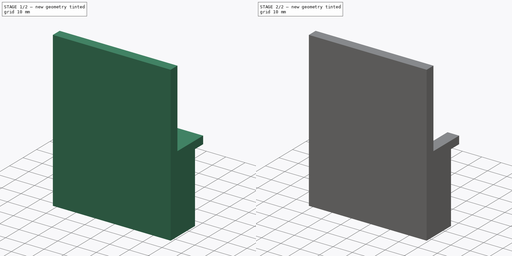
[diagram: build sequence overview — one tinted view per stage of 2, left to right]
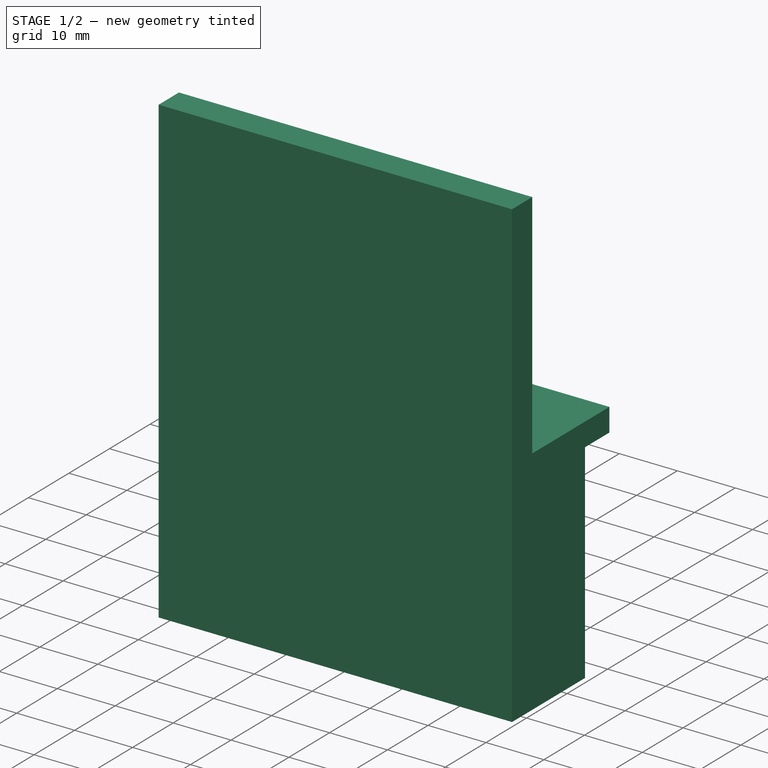
[diagram: stage 1 of 2 — iso view after this stage's code; geometry added in this stage tinted green]
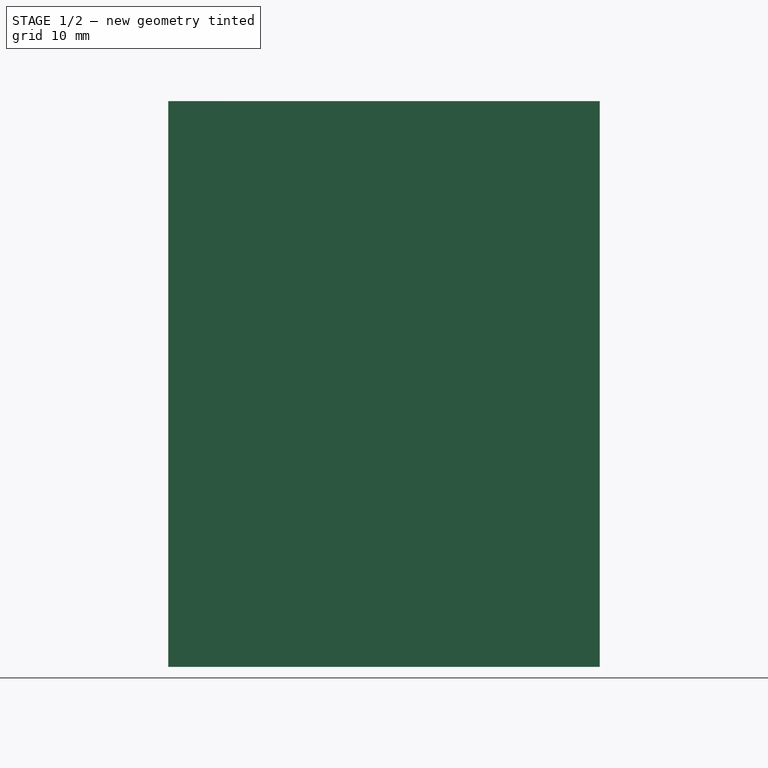
[diagram: stage 1 of 2 — front view after this stage's code; geometry added in this stage tinted green]
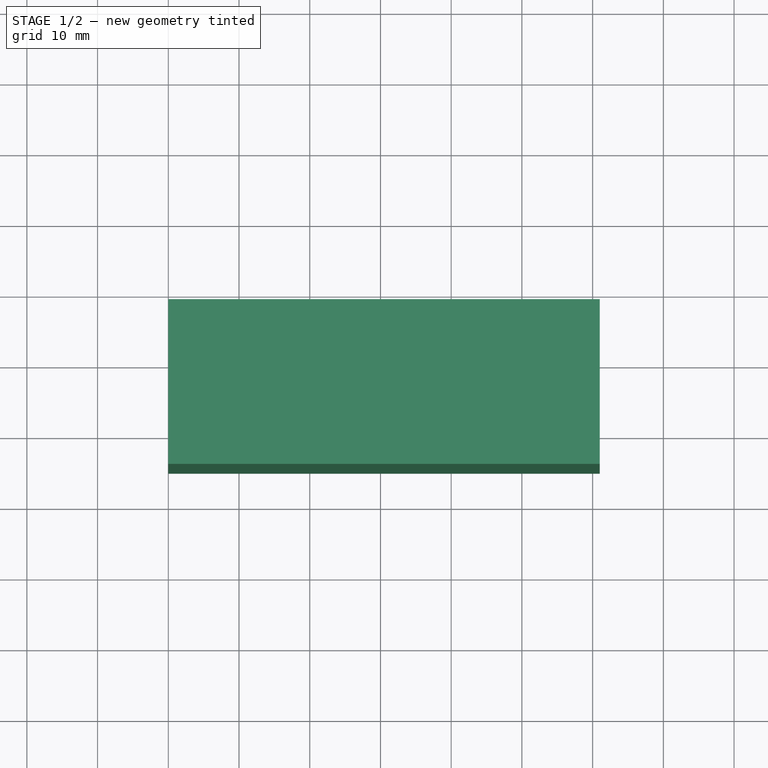
[diagram: stage 1 of 2 — top view after this stage's code; geometry added in this stage tinted green]
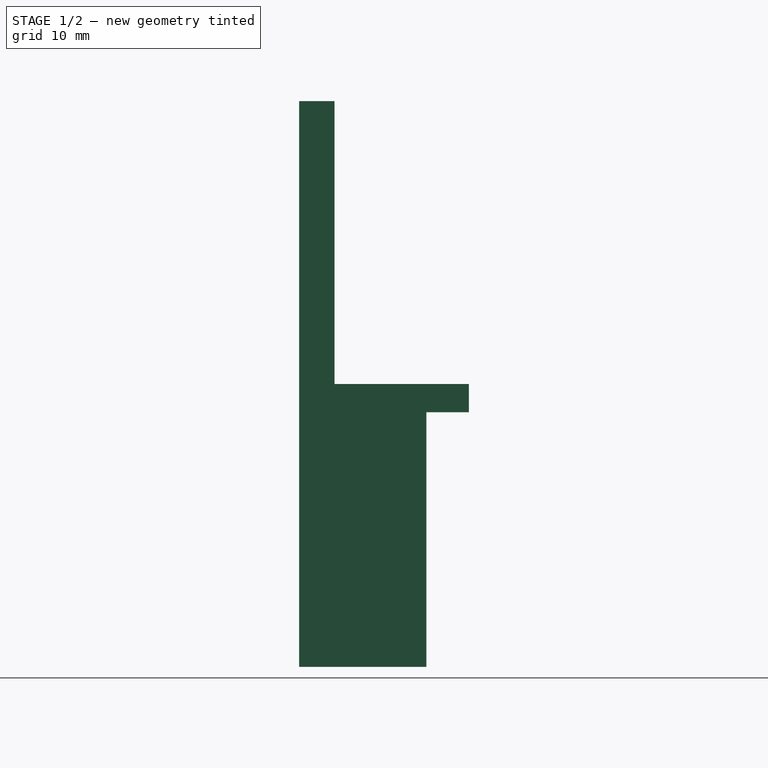
[diagram: stage 1 of 2 — right view after this stage's code; geometry added in this stage tinted green]
FCSTD DOCUMENT  (FreeCAD 1.1R41491 (Git))
Label: Enclosure_Cover
License: All rights reserved
LicenseURL: https://en.wikipedia.org/wiki/All_rights_reserved
objects: Sketcher::SketchObject×3, PartDesign::Pad×2, App::Point×1, PartDesign::Pocket×1, PartDesign::Body×1
note: 16 computed .brp shape members not serialized (recipe doc carries the construction recipe); baked Part::Feature solids carry a one-line shape summary decoded from their .brp

FEATURE [App::Point] Origin001
  Role = Origin
FEATURE [Sketcher::SketchObject] Sketch
  ArcFitTolerance = 1e-06
  AttachmentSupport = -> [Origin]
  ExternalTypes = [0]
  FullyConstrained = true
  MakeInternals = false
  MapMode = 5
  Placement = pos=(0,0,0) rot=(0.57735,0.57735,0.57735;2.0944rad)
  sketch-geometry (4):
    g0: LineSegment StartX=0 StartY=0 StartZ=0 EndX=0 EndY=80 EndZ=0
    g1: LineSegment StartX=0 StartY=80 StartZ=0 EndX=-5 EndY=80 EndZ=0
    g2: LineSegment StartX=-5 StartY=80 StartZ=0 EndX=-5 EndY=0 EndZ=0
    g3: LineSegment StartX=-5 StartY=0 StartZ=0 EndX=0 EndY=0 EndZ=0
  constraints (11):
    c: Coincident(g0,g1)
    c: Coincident(g1,g2)
    c: Coincident(g2,g3)
    c: Coincident(g3,g0)
    c: Vertical(g0)
    c: Vertical(g2)
    c: Horizontal(g1)
    c: Horizontal(g3)
    c: Coincident(g0,g-1)
    c: Distance(g1,g1) = 5
    c: DistanceY(g0,g0) = 80
FEATURE [PartDesign::Pad] Pad
  Direction = (1,0,0)
  Length = 61
  Length2 = 10
  Profile = -> Sketch
  ReferenceAxis = -> Sketch [N_Axis]
  Refine = true
  Suppressed = false
  Type = 0
FEATURE [Sketcher::SketchObject] Sketch001
  ArcFitTolerance = 1e-06
  AttachmentSupport = -> [Pad]
  ExternalTypes = [0]
  FullyConstrained = false
  MakeInternals = false
  MapMode = 5
  Placement = pos=(0,0,0) rot=(0.57735,-0.57735,-0.57735;2.0944rad)
  sketch-geometry (7):
    g0: LineSegment StartX=0 StartY=0 StartZ=0 EndX=0 EndY=36 EndZ=0
    g1: LineSegment StartX=-13 StartY=36 StartZ=0 EndX=-13 EndY=0 EndZ=0
    g2: LineSegment StartX=-13 StartY=0 StartZ=0 EndX=0 EndY=0 EndZ=0
    g3: LineSegment StartX=0 StartY=36 StartZ=0 EndX=0 EndY=40 EndZ=0
    g4: LineSegment StartX=0 StartY=40 StartZ=0 EndX=-19 EndY=40 EndZ=0
    g5: LineSegment StartX=-19 StartY=40 StartZ=0 EndX=-19 EndY=36 EndZ=0
    g6: LineSegment StartX=-19 StartY=36 StartZ=0 EndX=-13 EndY=36 EndZ=0
  constraints (15):
    c: Coincident(g1,g2)
    c: Coincident(g2,g0)
    c: Vertical(g0)
    c: Vertical(g1)
    c: Horizontal(g2)
    c: Coincident(g0,g-1)
    c: Coincident(g3,g4)
    c: Coincident(g4,g5)
    c: Coincident(g5,g6)
    c: Vertical(g3)
    c: Vertical(g5)
    c: Horizontal(g4)
    c: Coincident(g3,g0)
    c: Horizontal(g6)
    c: Coincident(g6,g1)
FEATURE [PartDesign::Pad] Pad001
  BaseFeature = -> Pad
  Direction = (-1,0,0)
  Length = 10
  Length2 = 10
  Profile = -> Sketch001
  ReferenceAxis = -> Sketch001 [N_Axis]
  Refine = true
  Suppressed = false
  Type = 3
  UpToFace = -> Pad [Face6]
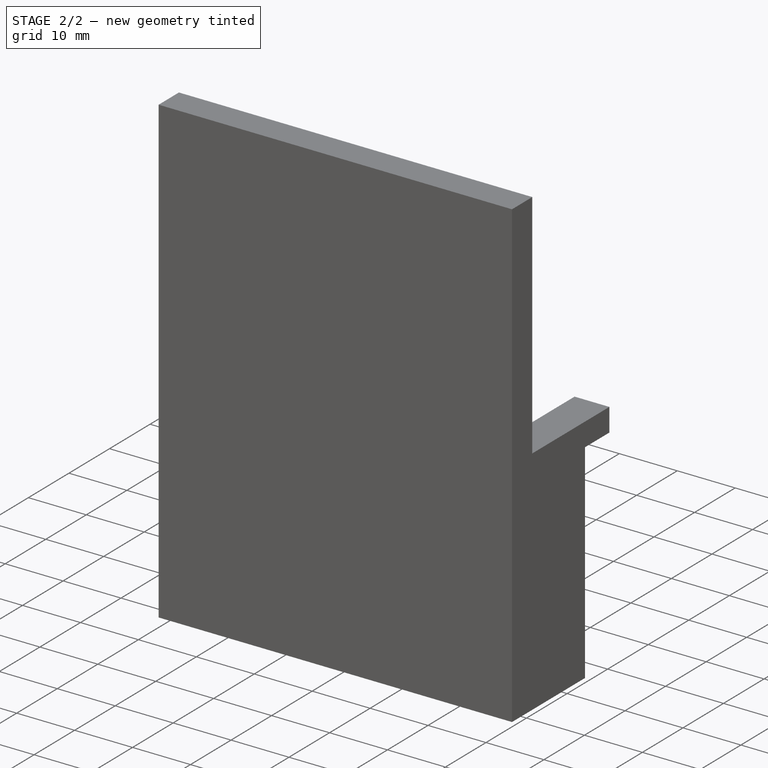
[diagram: stage 2 of 2 — iso view after this stage's code; geometry added in this stage tinted green]
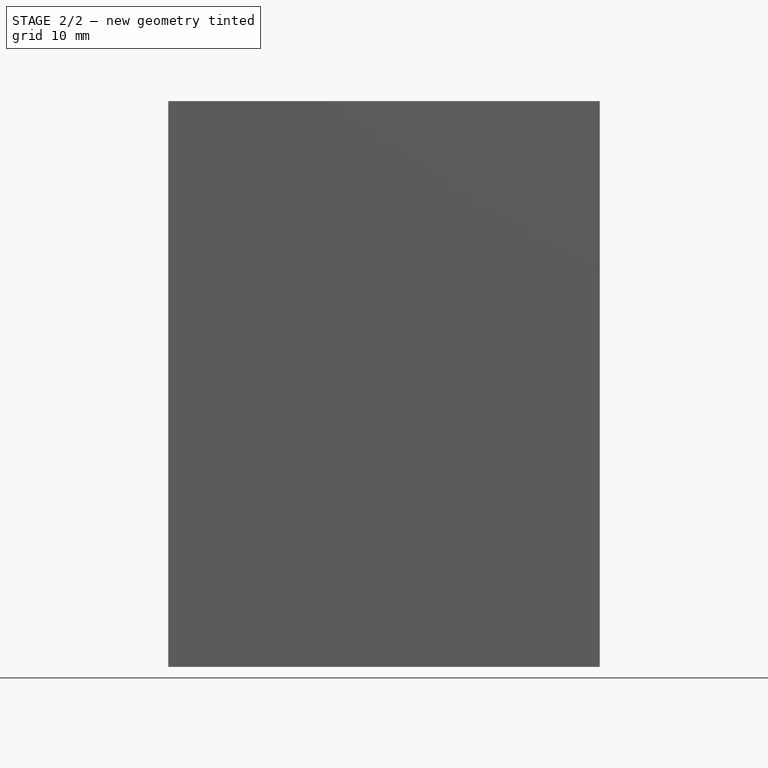
[diagram: stage 2 of 2 — front view after this stage's code; geometry added in this stage tinted green]
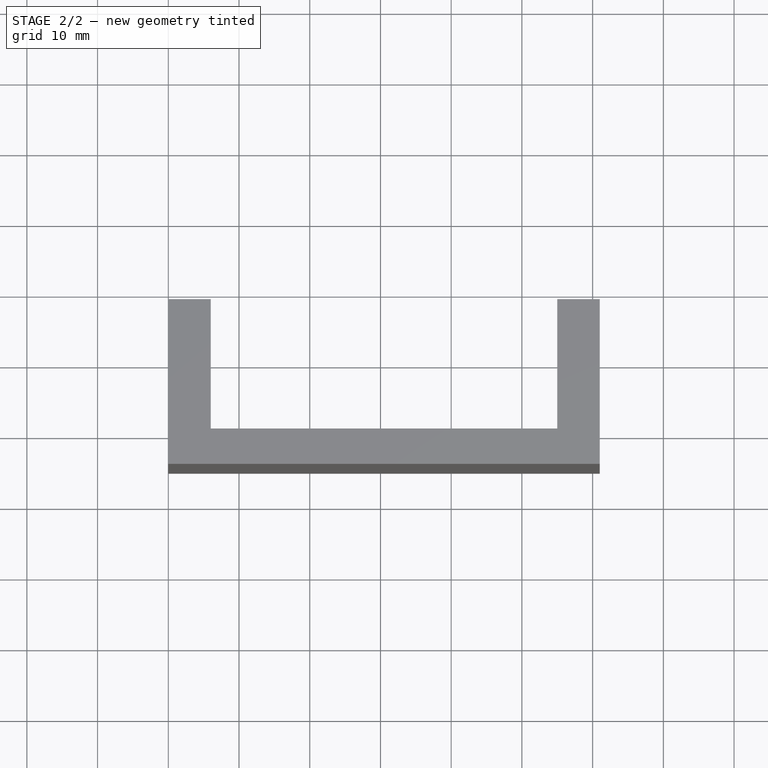
[diagram: stage 2 of 2 — top view after this stage's code; geometry added in this stage tinted green]
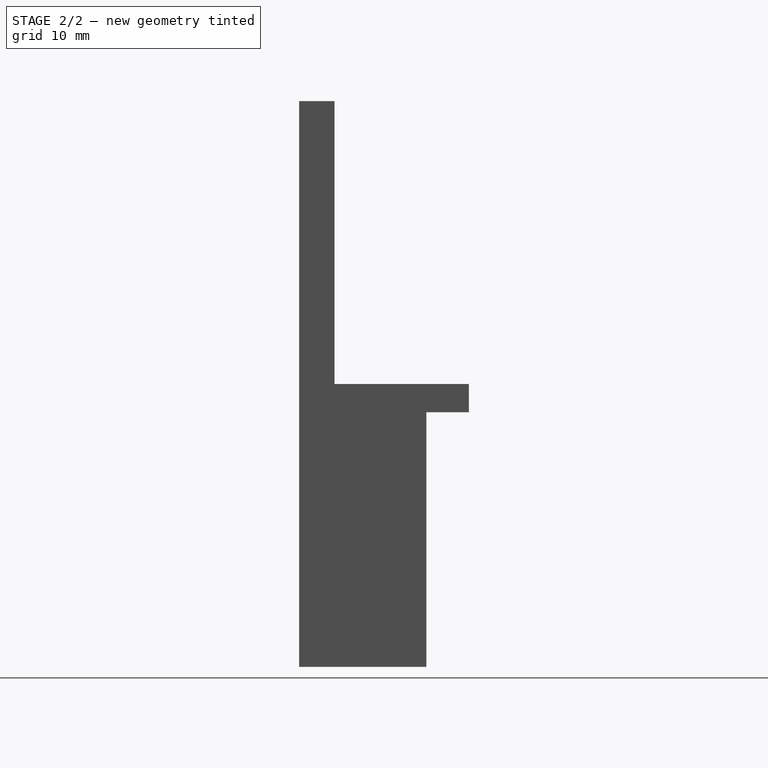
[diagram: stage 2 of 2 — right view after this stage's code; geometry added in this stage tinted green]
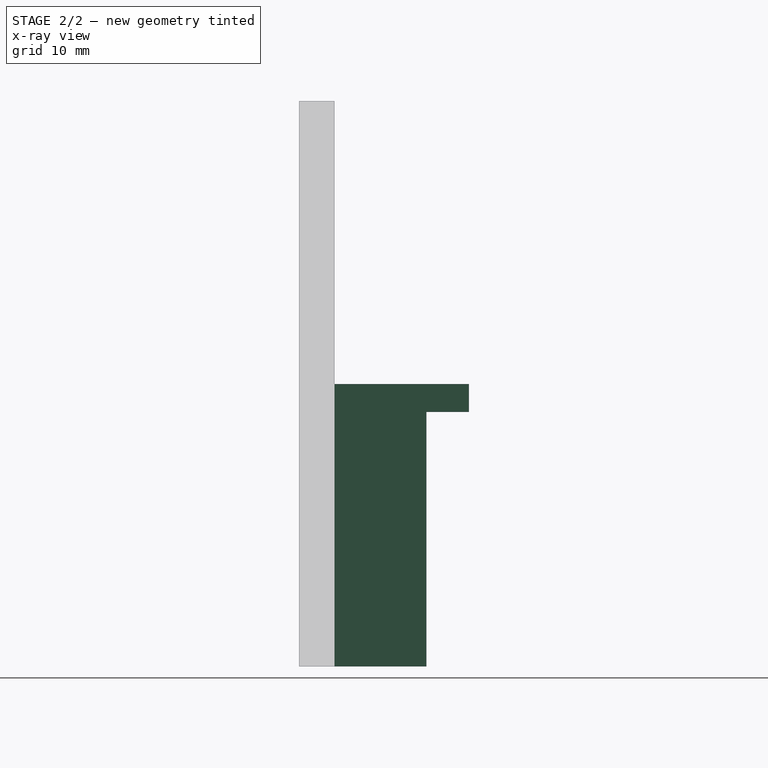
[diagram: stage 2 of 2 — x-ray composite at the right view; earlier geometry ghosted, this stage's added geometry solid]
FEATURE [Sketcher::SketchObject] Sketch002
  ArcFitTolerance = 1e-06
  AttachmentSupport = -> [Pad001]
  ExternalTypes = [0]
  FullyConstrained = false
  MakeInternals = false
  MapMode = 5
  Placement = pos=(0,0,0) rot=(0,0.707107,0.707107;3.14159rad)
  sketch-geometry (6):
    g0: GeomPoint [constr] X=-30.4939 Y=45 Z=0
    g1: LineSegment StartX=-54.9939 StartY=95.5174 StartZ=0 EndX=-54.9939 EndY=-5.51744 EndZ=0
    g2: LineSegment StartX=-54.9939 StartY=-5.51744 StartZ=0 EndX=-5.99387 EndY=-5.51744 EndZ=0
    g3: LineSegment StartX=-5.99387 StartY=-5.51744 StartZ=0 EndX=-5.99387 EndY=95.5174 EndZ=0
    g4: LineSegment StartX=-5.99387 StartY=95.5174 StartZ=0 EndX=-54.9939 EndY=95.5174 EndZ=0
    g5: GeomPoint [constr] X=-30.4939 Y=45 Z=0
  constraints (11):
    c: Coincident(g1,g2)
    c: Coincident(g2,g3)
    c: Coincident(g3,g4)
    c: Coincident(g4,g1)
    c: Vertical(g1)
    c: Vertical(g3)
    c: Horizontal(g2)
    c: Horizontal(g4)
    c: Symmetric(g3,g1,g5)
    c: Coincident(g5,g0)
    c: DistanceX(g4,g4) = 49
FEATURE [PartDesign::Pocket] Pocket
  BaseFeature = -> Pad001
  Direction = (0,-1,0)
  Length = 0
  Length2 = 5
  Profile = -> Sketch002
  ReferenceAxis = -> Sketch002 [N_Axis]
  Refine = true
  Suppressed = false
  Type = 3
  UpToFace = -> Pad001 [Face5]
FEATURE [PartDesign::Body] Body
  AllowCompound = false
  Group = -> [Sketch,Pad,Sketch001,Pad001,Sketch002,Pocket]
  Origin = -> Origin
  Tip = -> Pocket
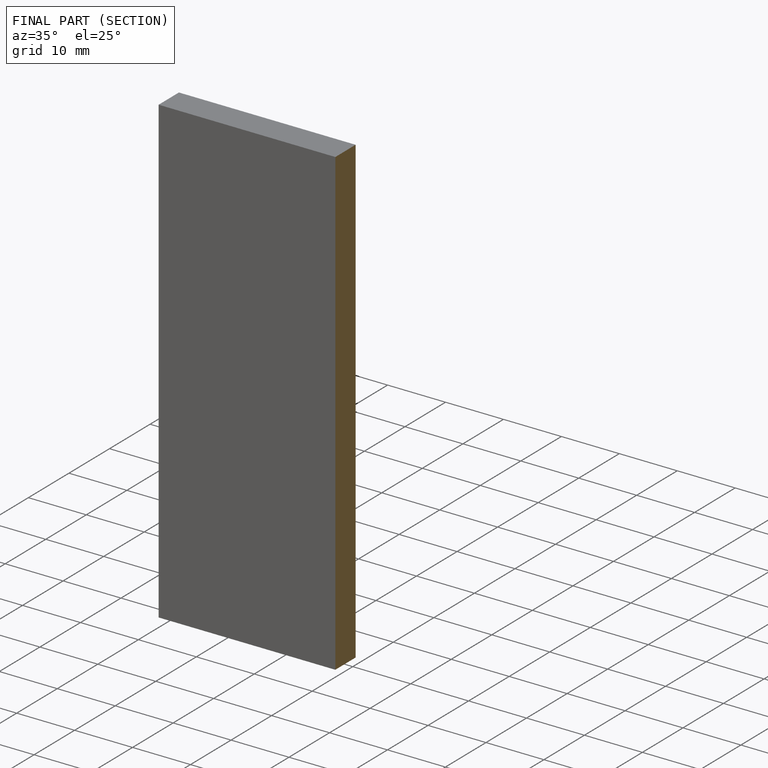
[diagram: finished part — half-section view (interior)]
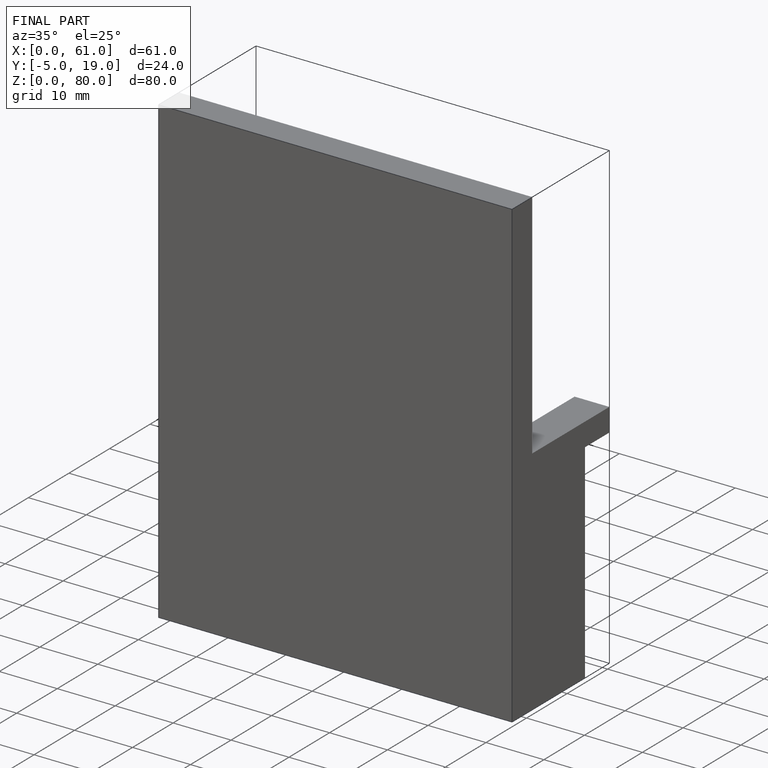
[diagram: finished part — iso view with bounding-box wireframe]
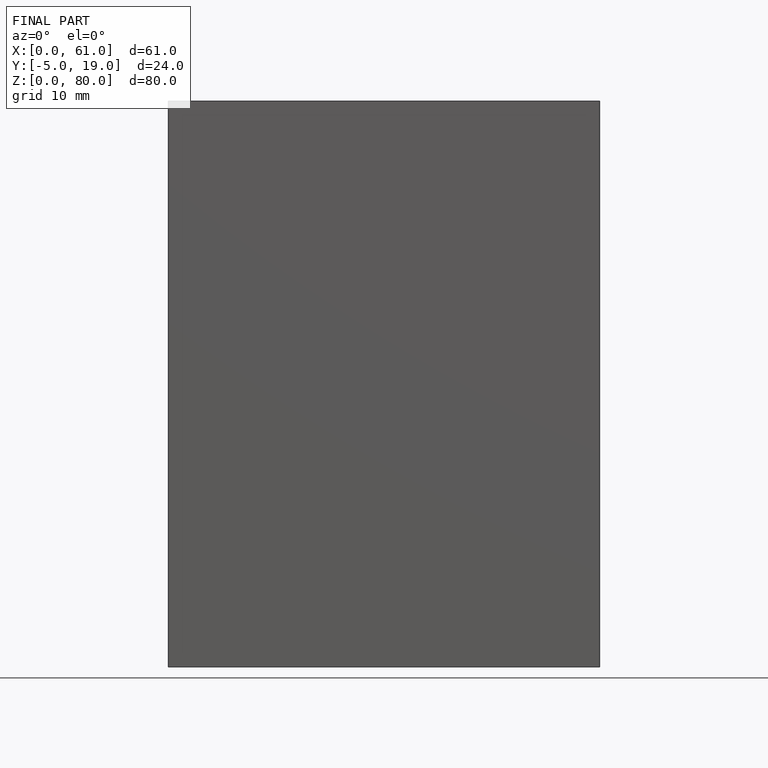
[diagram: finished part — front view with bounding-box wireframe]
